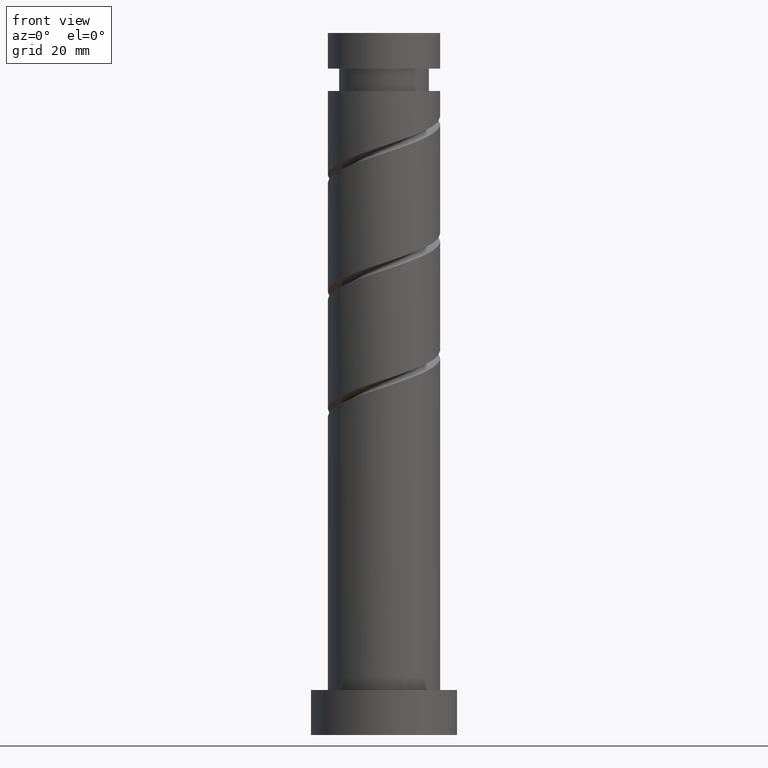
[diagram: clean part render]
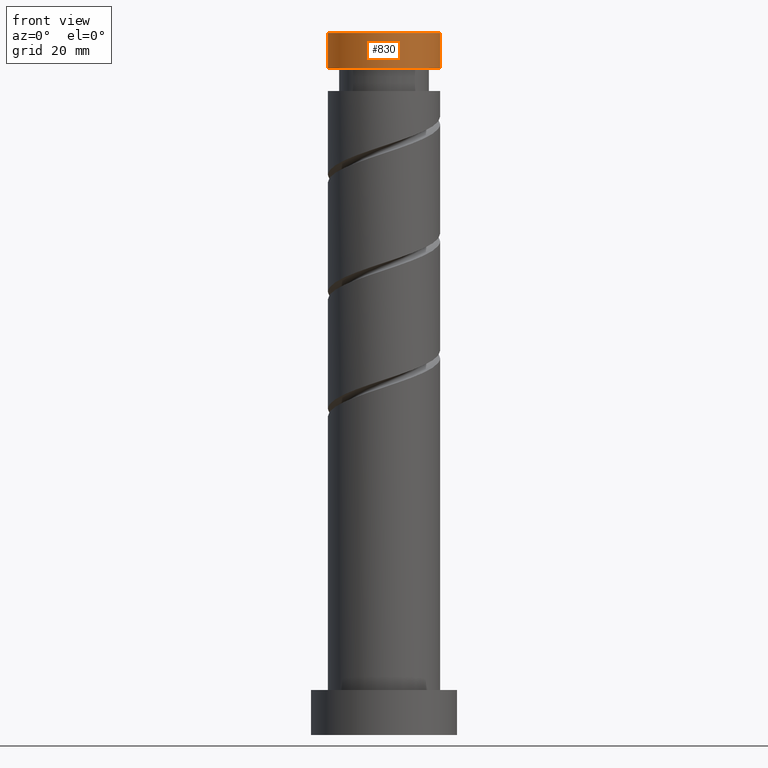
[diagram: same view with one face highlighted and labeled with its STEP entity id]
A machine part, front view. The second image highlights one B-rep face of the part: STEP entity #830.
In plain terms, the highlighted cylindrical surface (partial cylindrical patch) has radius 10 mm, axis along (-0, -0, -1).
Its self-contained STEP definition (entity closure, byte-faithful):
#49 = EDGE_CURVE ( 'NONE', #942, #1295, #472, .T. ) ;
#83 = AXIS2_PLACEMENT_3D ( 'NONE', #88, #1432, #108 ) ;
#88 = CARTESIAN_POINT ( 'NONE',  ( 0.000000000000000000, 0.000000000000000000, 125.0000000000000000 ) ) ;
#108 = DIRECTION ( 'NONE',  ( -1.000000000000000000, 0.000000000000000000, 0.000000000000000000 ) ) ;
#144 = CARTESIAN_POINT ( 'NONE',  ( 10.00000000000000000, 1.224646799147353256E-15, 118.6755799062901957 ) ) ;
#221 = DIRECTION ( 'NONE',  ( 0.000000000000000000, 0.000000000000000000, 1.000000000000000000 ) ) ;
#229 = DIRECTION ( 'NONE',  ( 1.000000000000000000, 0.000000000000000000, 0.000000000000000000 ) ) ;
#250 = VECTOR ( 'NONE', #542, 1000.000000000000000 ) ;
#264 = CARTESIAN_POINT ( 'NONE',  ( 0.000000000000000000, 0.000000000000000000, 118.6755799062901957 ) ) ;
#335 = CARTESIAN_POINT ( 'NONE',  ( 0.000000000000000000, 0.000000000000000000, 125.0000000000000000 ) ) ;
#342 = ORIENTED_EDGE ( 'NONE', *, *, #1500, .F. ) ;
#351 = CYLINDRICAL_SURFACE ( 'NONE', #83, 10.00000000000000178 ) ;
#472 = LINE ( 'NONE', #532, #1445 ) ;
#532 = CARTESIAN_POINT ( 'NONE',  ( -10.00000000000000178, 0.000000000000000000, 125.0000000000000000 ) ) ;
#542 = DIRECTION ( 'NONE',  ( -0.000000000000000000, -0.000000000000000000, -1.000000000000000000 ) ) ;
#605 = DIRECTION ( 'NONE',  ( -1.000000000000000000, 0.000000000000000000, 0.000000000000000000 ) ) ;
#776 = VERTEX_POINT ( 'NONE', #1302 ) ;
#830 = ADVANCED_FACE ( 'NONE', ( #963 ), #351, .T. ) ;
#867 = AXIS2_PLACEMENT_3D ( 'NONE', #264, #1008, #605 ) ;
#869 = EDGE_CURVE ( 'NONE', #942, #776, #981, .T. ) ;
#891 = LINE ( 'NONE', #1373, #250 ) ;
#942 = VERTEX_POINT ( 'NONE', #1567 ) ;
#963 = FACE_OUTER_BOUND ( 'NONE', #1354, .T. ) ;
#981 = CIRCLE ( 'NONE', #1279, 10.00000000000000178 ) ;
#1008 = DIRECTION ( 'NONE',  ( -0.000000000000000000, -0.000000000000000000, -1.000000000000000000 ) ) ;
#1048 = CIRCLE ( 'NONE', #867, 10.00000000000000000 ) ;
#1218 = EDGE_CURVE ( 'NONE', #776, #1505, #891, .T. ) ;
#1279 = AXIS2_PLACEMENT_3D ( 'NONE', #335, #221, #229 ) ;
#1295 = VERTEX_POINT ( 'NONE', #1379 ) ;
#1302 = CARTESIAN_POINT ( 'NONE',  ( 10.00000000000000178, 1.224646799147353454E-15, 125.0000000000000000 ) ) ;
#1345 = ORIENTED_EDGE ( 'NONE', *, *, #1218, .F. ) ;
#1354 = EDGE_LOOP ( 'NONE', ( #1345, #1487, #1545, #342 ) ) ;
#1373 = CARTESIAN_POINT ( 'NONE',  ( 10.00000000000000178, 1.224646799147353454E-15, 125.0000000000000000 ) ) ;
#1378 = DIRECTION ( 'NONE',  ( -0.000000000000000000, -0.000000000000000000, -1.000000000000000000 ) ) ;
#1379 = CARTESIAN_POINT ( 'NONE',  ( -10.00000000000000000, 0.000000000000000000, 118.6755799062901957 ) ) ;
#1432 = DIRECTION ( 'NONE',  ( -0.000000000000000000, -0.000000000000000000, -1.000000000000000000 ) ) ;
#1445 = VECTOR ( 'NONE', #1378, 1000.000000000000000 ) ;
#1487 = ORIENTED_EDGE ( 'NONE', *, *, #869, .F. ) ;
#1500 = EDGE_CURVE ( 'NONE', #1505, #1295, #1048, .T. ) ;
#1505 = VERTEX_POINT ( 'NONE', #144 ) ;
#1545 = ORIENTED_EDGE ( 'NONE', *, *, #49, .T. ) ;
#1567 = CARTESIAN_POINT ( 'NONE',  ( -10.00000000000000178, 0.000000000000000000, 125.0000000000000000 ) ) ;